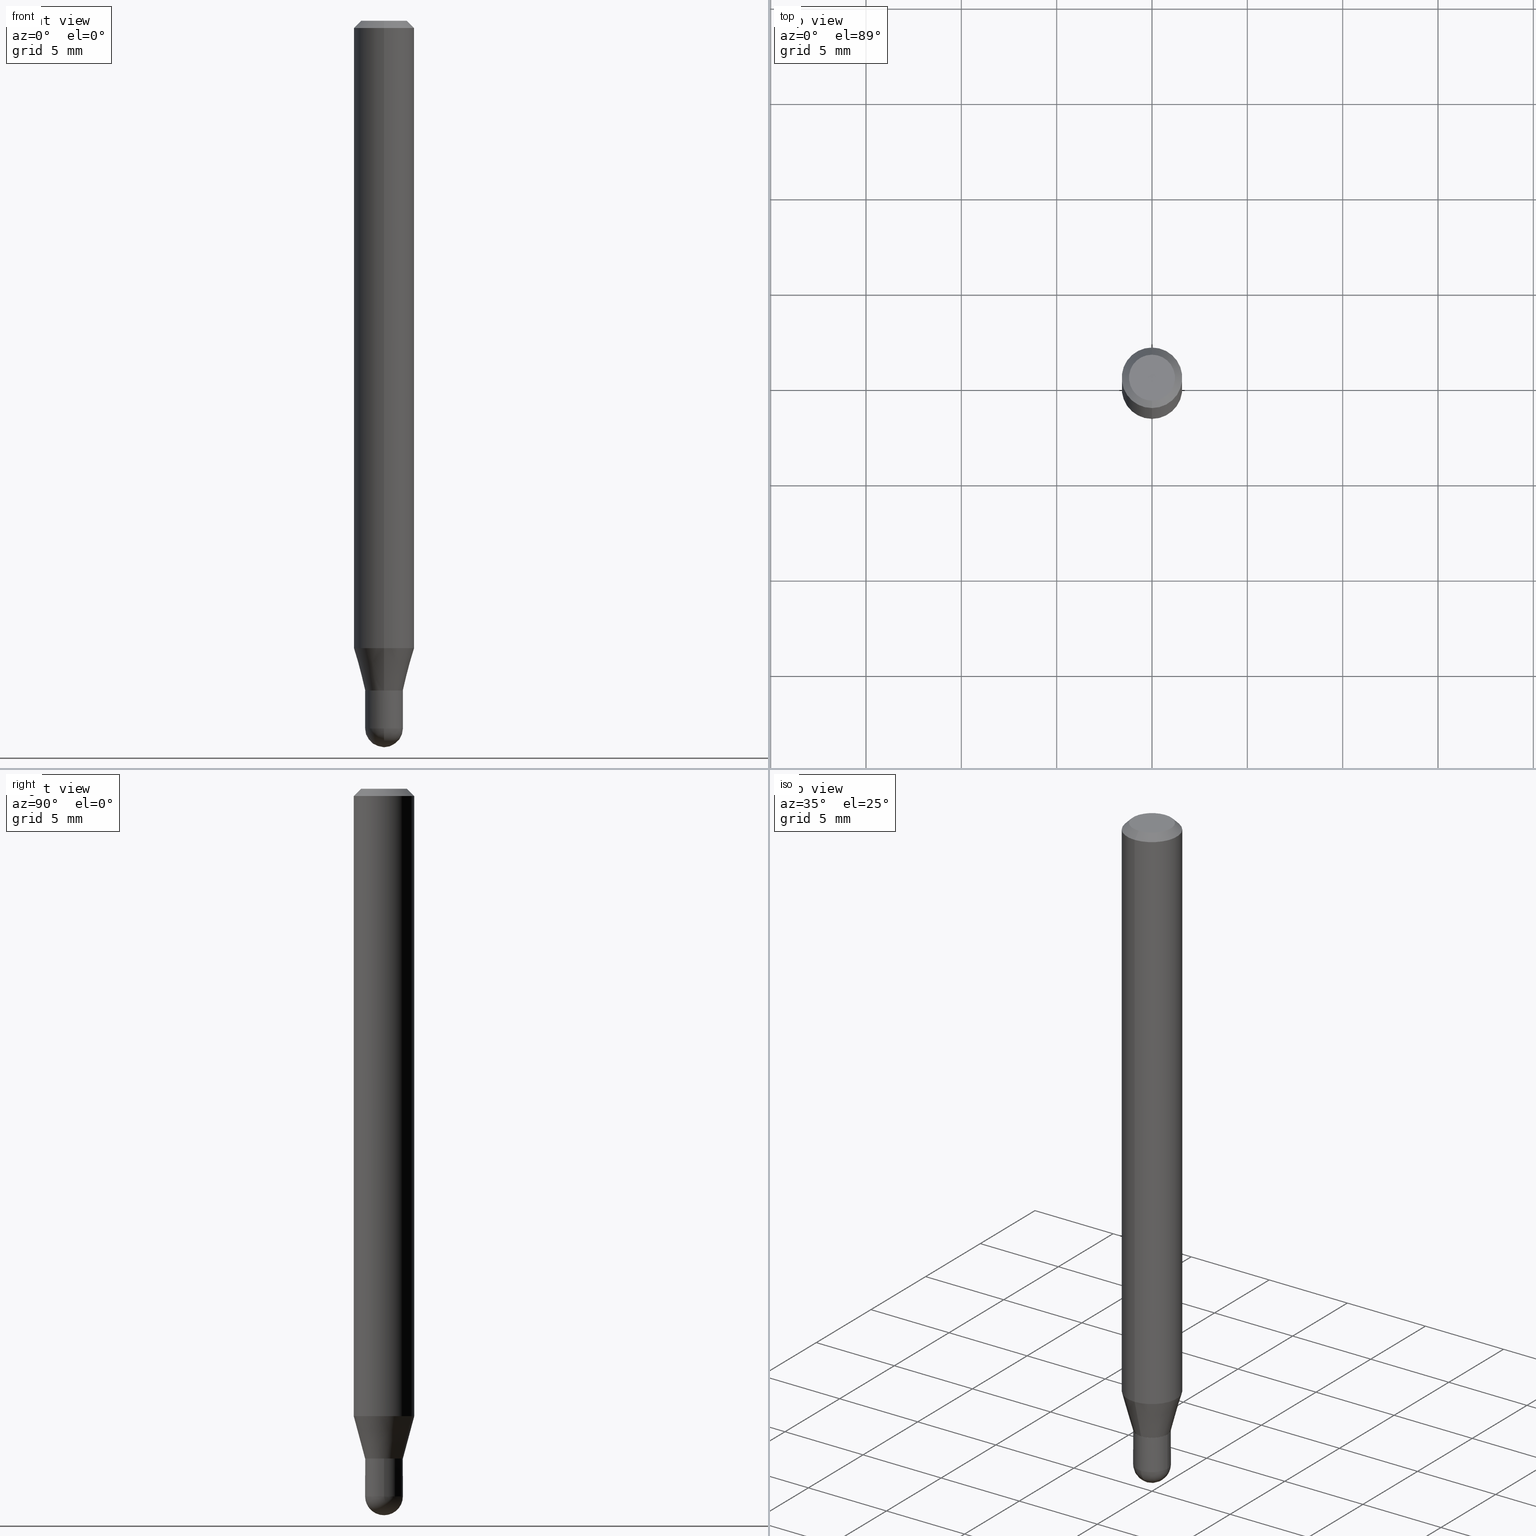
[diagram: canonical four-view strip — front | top / right | iso, engineering-drawing reading convention]
A machine part, canonical four-view strip (front | top / right | iso — engineering-drawing reading convention). The complete STEP part file that produces these views, byte-faithful:
ISO-10303-21;
HEADER;
FILE_DESCRIPTION (( 'STEP AP203' ),
    '1' );
FILE_NAME ('01422.STEP',
    '2024-03-07T20:39:55',
    ( '' ),
    ( '' ),
    'SwSTEP 2.0',
    'SolidWorks 2023',
    '' );
FILE_SCHEMA (( 'CONFIG_CONTROL_DESIGN' ));
ENDSEC;

DATA;
#1 = CARTESIAN_POINT ( 'NONE',  ( 3.569494777308684757E-29, -5.105830358566509883E-15, -1.461000000000000076 ) ) ;
#2 = CARTESIAN_POINT ( 'NONE',  ( 3.572829925836484317E-29, -5.101054236049835376E-15, -1.461000000000000076 ) ) ;
#3 = CARTESIAN_POINT ( 'NONE',  ( 2.167168248901613066E-46, -3.094083357917074429E-32, -8.861890908421441396E-18 ) ) ;
#4 = AXIS2_PLACEMENT_3D ( 'NONE', #128, #168, #328 ) ;
#5 = CIRCLE ( 'NONE', #448, 0.03899999999999992362 ) ;
#6 = ORIENTED_EDGE ( 'NONE', *, *, #31, .F. ) ;
#7 = CARTESIAN_POINT ( 'NONE',  ( 4.440892098500944664E-16, 0.06249999999999995143, -0.01500000000000022669 ) ) ;
#8 = CARTESIAN_POINT ( 'NONE',  ( 3.668237859104355439E-31, -5.237172387740815938E-17, -0.01500000000000000812 ) ) ;
#9 = ORIENTED_EDGE ( 'NONE', *, *, #55, .F. ) ;
#10 = CALENDAR_DATE ( 2024, 7, 3 ) ;
#11 = DIRECTION ( 'NONE',  ( -2.445468806185136597E-29, 3.491481338843145583E-15, 1.000000000000000000 ) ) ;
#12 = CLOSED_SHELL ( 'NONE', ( #111, #452, #163, #398, #19 ) ) ;
#13 = EDGE_LOOP ( 'NONE', ( #400, #408, #479, #132 ) ) ;
#14 = SECURITY_CLASSIFICATION_LEVEL ( 'unclassified' ) ;
#15 = AXIS2_PLACEMENT_3D ( 'NONE', #217, #24, #177 ) ;
#16 = DIRECTION ( 'NONE',  ( -6.982962677686265922E-15, -1.000000000000000000, 0.000000000000000000 ) ) ;
#17 = LINE ( 'NONE', #202, #437 ) ;
#18 = VERTEX_POINT ( 'NONE', #478 ) ;
#19 = ADVANCED_FACE ( 'NONE', ( #214 ), #370, .T. ) ;
#20 = CARTESIAN_POINT ( 'NONE',  ( 0.000000000000000000, 0.000000000000000000, 0.000000000000000000 ) ) ;
#21 = ORIENTED_EDGE ( 'NONE', *, *, #403, .F. ) ;
#22 = CALENDAR_DATE ( 2024, 7, 3 ) ;
#23 = PRODUCT ( '01422', '01422', '', ( #407 ) ) ;
#24 = DIRECTION ( 'NONE',  ( -2.445491906069568494E-29, 3.491448258493875090E-15, 1.000000000000000000 ) ) ;
#25 = PERSON_AND_ORGANIZATION ( #220, #511 ) ;
#26 = AXIS2_PLACEMENT_3D ( 'NONE', #376, #341, #497 ) ;
#27 = FACE_OUTER_BOUND ( 'NONE', #50, .T. ) ;
#28 = ORIENTED_EDGE ( 'NONE', *, *, #119, .F. ) ;
#29 = CARTESIAN_POINT ( 'NONE',  ( 2.723355444297981413E-16, 0.03899999999999516354, -1.383000000000000229 ) ) ;
#30 = ORIENTED_EDGE ( 'NONE', *, *, #313, .F. ) ;
#31 = EDGE_CURVE ( 'NONE', #212, #257, #114, .T. ) ;
#32 = CARTESIAN_POINT ( 'NONE',  ( 2.167168248901613066E-46, -3.094083357917074429E-32, -8.861890908421441396E-18 ) ) ;
#33 = ORIENTED_EDGE ( 'NONE', *, *, #321, .F. ) ;
#34 = AXIS2_PLACEMENT_3D ( 'NONE', #2, #309, #472 ) ;
#35 = CARTESIAN_POINT ( 'NONE',  ( 3.382115306094214150E-29, -4.828672941497029911E-15, -1.383000000000000229 ) ) ;
#36 = EDGE_CURVE ( 'NONE', #156, #203, #52, .T. ) ;
#37 = CARTESIAN_POINT ( 'NONE',  ( -2.723355444297309402E-16, -0.03900000000000489186, -1.382500000000000284 ) ) ;
#38 = CARTESIAN_POINT ( 'NONE',  ( 3.569494777308684757E-29, -5.105830358566509883E-15, -1.461000000000000076 ) ) ;
#39 = CIRCLE ( 'NONE', #44, 0.03899999999999999994 ) ;
#40 = SPHERICAL_SURFACE ( 'NONE', #432, 0.03900000000000016648 ) ;
#41 = SECURITY_CLASSIFICATION ( '', '', #14 ) ;
#42 = DIRECTION ( 'NONE',  ( -6.982962677686266711E-15, -1.000000000000000000, 3.491448258493875484E-15 ) ) ;
#43 = FACE_OUTER_BOUND ( 'NONE', #495, .T. ) ;
#44 = AXIS2_PLACEMENT_3D ( 'NONE', #159, #307, #315 ) ;
#45 = VERTEX_POINT ( 'NONE', #88 ) ;
#46 = EDGE_CURVE ( 'NONE', #430, #189, #17, .T. ) ;
#47 = CARTESIAN_POINT ( 'NONE',  ( 3.382115306094214150E-29, -4.828672941497029911E-15, -1.383000000000000229 ) ) ;
#48 = PERSON_AND_ORGANIZATION_ROLE ( 'design_supplier' ) ;
#49 = CC_DESIGN_PERSON_AND_ORGANIZATION_ASSIGNMENT ( #451, #496, ( #485 ) ) ;
#50 = EDGE_LOOP ( 'NONE', ( #366, #420 ) ) ;
#51 = COORDINATED_UNIVERSAL_TIME_OFFSET ( 5, 0, .BEHIND. ) ;
#52 = LINE ( 'NONE', #335, #160 ) ;
#53 = PERSON_AND_ORGANIZATION ( #220, #511 ) ;
#54 = AXIS2_PLACEMENT_3D ( 'NONE', #29, #419, #184 ) ;
#55 = EDGE_CURVE ( 'NONE', #197, #463, #137, .T. ) ;
#56 = EDGE_LOOP ( 'NONE', ( #28, #298, #336, #9 ) ) ;
#57 = ORIENTED_EDGE ( 'NONE', *, *, #291, .F. ) ;
#58 = PERSON_AND_ORGANIZATION ( #220, #511 ) ;
#59 = PRODUCT_DEFINITION_SHAPE ( 'NONE', 'NONE',  #485 ) ;
#60 = PRODUCT_RELATED_PRODUCT_CATEGORY ( 'detail', '', ( #23 ) ) ;
#61 = DIRECTION ( 'NONE',  ( -2.445491906069568494E-29, 3.491448258493875090E-15, 1.000000000000000000 ) ) ;
#62 = ORIENTED_EDGE ( 'NONE', *, *, #130, .T. ) ;
#63 = APPROVAL_ROLE ( '' ) ;
#64 = DIRECTION ( 'NONE',  ( 6.982962677686265922E-15, 1.000000000000000000, -3.483106191921935554E-15 ) ) ;
#65 = ORIENTED_EDGE ( 'NONE', *, *, #272, .T. ) ;
#66 = CONICAL_SURFACE ( 'NONE', #416, 0.06250000000000000000, 0.7853981633974483900 ) ;
#67 = AXIS2_PLACEMENT_3D ( 'NONE', #427, #84, #235 ) ;
#68 = CARTESIAN_POINT ( 'NONE',  ( 4.440892098500625669E-16, 0.06250000000000000000, -2.182155161558671684E-16 ) ) ;
#69 = SHAPE_DEFINITION_REPRESENTATION ( #59, #201 ) ;
#70 = CARTESIAN_POINT ( 'NONE',  ( -4.364351673553912750E-16, -0.06250000000000005551, -0.01499999999999979128 ) ) ;
#71 = CC_DESIGN_PERSON_AND_ORGANIZATION_ASSIGNMENT ( #455, #487, ( #23 ) ) ;
#72 = ORIENTED_EDGE ( 'NONE', *, *, #272, .F. ) ;
#73 = DIRECTION ( 'NONE',  ( -2.445491906069568494E-29, 3.491448258493875090E-15, 1.000000000000000000 ) ) ;
#74 = AXIS2_PLACEMENT_3D ( 'NONE', #457, #449, #260 ) ;
#75 = EDGE_CURVE ( 'NONE', #463, #189, #231, .T. ) ;
#76 = LOCAL_TIME ( 15, 39, 55.00000000000000000, #216 ) ;
#77 = DIRECTION ( 'NONE',  ( -2.445491906069568494E-29, 3.491448258493875090E-15, 1.000000000000000000 ) ) ;
#78 = DIRECTION ( 'NONE',  ( -6.982962677686265922E-15, -1.000000000000000000, 0.000000000000000000 ) ) ;
#79 = DIRECTION ( 'NONE',  ( 1.000000000000000000, -6.982962677686258033E-15, 0.000000000000000000 ) ) ;
#80 = ADVANCED_FACE ( 'NONE', ( #93 ), #323, .F. ) ;
#81 = ORIENTED_EDGE ( 'NONE', *, *, #31, .T. ) ;
#82 = CIRCLE ( 'NONE', #269, 0.03899999999999999994 ) ;
#83 = VECTOR ( 'NONE', #112, 39.37007874015748143 ) ;
#84 = DIRECTION ( 'NONE',  ( -2.445468806185136597E-29, 3.491481338843145583E-15, 1.000000000000000000 ) ) ;
#85 = DIRECTION ( 'NONE',  ( -2.445491906069568494E-29, 3.491448258493875090E-15, 1.000000000000000000 ) ) ;
#86 = EDGE_CURVE ( 'NONE', #109, #18, #82, .T. ) ;
#87 = CIRCLE ( 'NONE', #67, 0.03899999999999999994 ) ;
#88 = CARTESIAN_POINT ( 'NONE',  ( 0.03899999999999999994, -5.101054236049835376E-15, -1.383000000000000229 ) ) ;
#89 = ADVANCED_FACE ( 'NONE', ( #365 ), #358, .T. ) ;
#90 = UNCERTAINTY_MEASURE_WITH_UNIT (LENGTH_MEASURE( 1.000000000000000082E-05 ), #410, 'distance_accuracy_value', 'NONE');
#91 = ORIENTED_EDGE ( 'NONE', *, *, #36, .T. ) ;
#92 = CARTESIAN_POINT ( 'NONE',  ( 3.382115306094213590E-29, -4.828672941497029122E-15, -1.383000000000000007 ) ) ;
#93 = FACE_OUTER_BOUND ( 'NONE', #125, .T. ) ;
#94 = ORIENTED_EDGE ( 'NONE', *, *, #469, .T. ) ;
#95 = AXIS2_PLACEMENT_3D ( 'NONE', #8, #294, #165 ) ;
#96 = CC_DESIGN_PERSON_AND_ORGANIZATION_ASSIGNMENT ( #53, #367, ( #169 ) ) ;
#97 = CALENDAR_DATE ( 2024, 7, 3 ) ;
#98 = CARTESIAN_POINT ( 'NONE',  ( 3.668237859104355439E-31, -5.237172387740815938E-17, -0.01500000000000000812 ) ) ;
#99 = DATE_TIME_ROLE ( 'creation_date' ) ;
#100 = CARTESIAN_POINT ( 'NONE',  ( -2.723355444297300034E-16, -0.03900000000000475309, -1.383000000000000007 ) ) ;
#101 = ORIENTED_EDGE ( 'NONE', *, *, #361, .F. ) ;
#102 = CARTESIAN_POINT ( 'NONE',  ( 3.316907271900976096E-16, 0.04749999999999999362, -1.702747377326697798E-16 ) ) ;
#103 = CARTESIAN_POINT ( 'NONE',  ( 0.000000000000000000, 0.000000000000000000, 0.000000000000000000 ) ) ;
#104 = ORIENTED_EDGE ( 'NONE', *, *, #313, .T. ) ;
#105 = CIRCLE ( 'NONE', #26, 0.06250000000000000000 ) ;
#106 = LOCAL_TIME ( 15, 39, 55.00000000000000000, #51 ) ;
#107 = CC_DESIGN_PERSON_AND_ORGANIZATION_ASSIGNMENT ( #219, #48, ( #169 ) ) ;
#108 = DIRECTION ( 'NONE',  ( -2.445491906069568494E-29, 3.491448258493875090E-15, 1.000000000000000000 ) ) ;
#109 = VERTEX_POINT ( 'NONE', #185 ) ;
#110 = LINE ( 'NONE', #411, #209 ) ;
#111 = ADVANCED_FACE ( 'NONE', ( #151 ), #379, .T. ) ;
#112 = DIRECTION ( 'NONE',  ( -4.937700262164674260E-15, -0.7071067811865632269, 0.7071067811865319186 ) ) ;
#113 = ORIENTED_EDGE ( 'NONE', *, *, #150, .T. ) ;
#114 = CIRCLE ( 'NONE', #317, 0.03849999999999999256 ) ;
#115 = AXIS2_PLACEMENT_3D ( 'NONE', #444, #401, #280 ) ;
#116 = CARTESIAN_POINT ( 'NONE',  ( 0.000000000000000000, 0.000000000000000000, 0.000000000000000000 ) ) ;
#117 = DIRECTION ( 'NONE',  ( -6.982962677686265922E-15, -1.000000000000000000, 0.000000000000000000 ) ) ;
#118 = ORIENTED_EDGE ( 'NONE', *, *, #261, .T. ) ;
#119 = EDGE_CURVE ( 'NONE', #371, #197, #492, .T. ) ;
#120 = CYLINDRICAL_SURFACE ( 'NONE', #186, 0.03899999999999992362 ) ;
#121 = AXIS2_PLACEMENT_3D ( 'NONE', #460, #108, #395 ) ;
#122 = AXIS2_PLACEMENT_3D ( 'NONE', #3, #350, #42 ) ;
#123 = CARTESIAN_POINT ( 'NONE',  ( 3.663200486486005276E-29, -5.244386192039730726E-15, -1.500000000000000222 ) ) ;
#124 = CARTESIAN_POINT ( 'NONE',  ( -4.364351673553602629E-16, -0.06250000000000455191, -1.295296806022133707 ) ) ;
#125 = EDGE_LOOP ( 'NONE', ( #6, #301 ) ) ;
#126 = DIRECTION ( 'NONE',  ( -2.445468806185136877E-29, 3.491481338843145188E-15, 1.000000000000000000 ) ) ;
#127 = VECTOR ( 'NONE', #312, 39.37007874015748143 ) ;
#128 = CARTESIAN_POINT ( 'NONE',  ( 3.382115306094214150E-29, -4.828672941497029911E-15, -1.383000000000000229 ) ) ;
#129 = DATE_AND_TIME ( #10, #360 ) ;
#130 = EDGE_CURVE ( 'NONE', #257, #212, #343, .T. ) ;
#131 = DIRECTION ( 'NONE',  ( 1.000000000000000000, -6.982962677686265922E-15, 4.876176775795935793E-29 ) ) ;
#132 = ORIENTED_EDGE ( 'NONE', *, *, #75, .F. ) ;
#133 = APPROVAL_STATUS ( 'not_yet_approved' ) ;
#134 = DIRECTION ( 'NONE',  ( -6.982962677686266711E-15, -1.000000000000000000, 0.000000000000000000 ) ) ;
#135 = DIMENSIONAL_EXPONENTS ( 1.000000000000000000, 0.000000000000000000, 0.000000000000000000, 0.000000000000000000, 0.000000000000000000, 0.000000000000000000, 0.000000000000000000 ) ;
#136 = AXIS2_PLACEMENT_3D ( 'NONE', #332, #486, #134 ) ;
#137 = LINE ( 'NONE', #172, #447 ) ;
#138 = AXIS2_PLACEMENT_3D ( 'NONE', #281, #248, #16 ) ;
#139 =( NAMED_UNIT ( * ) PLANE_ANGLE_UNIT ( ) SI_UNIT ( $, .RADIAN. ) );
#140 = AXIS2_PLACEMENT_3D ( 'NONE', #405, #208, #252 ) ;
#141 = PLANE ( 'NONE',  #161 ) ;
#142 = FACE_OUTER_BOUND ( 'NONE', #289, .T. ) ;
#143 = COORDINATED_UNIVERSAL_TIME_OFFSET ( 5, 0, .BEHIND. ) ;
#144 = PLANE ( 'NONE',  #54 ) ;
#145 = ORIENTED_EDGE ( 'NONE', *, *, #75, .T. ) ;
#146 = ADVANCED_FACE ( 'NONE', ( #265 ), #66, .T. ) ;
#147 = DIRECTION ( 'NONE',  ( -6.982962677686265922E-15, -1.000000000000000000, 0.000000000000000000 ) ) ;
#148 = VERTEX_POINT ( 'NONE', #344 ) ;
#149 = CIRCLE ( 'NONE', #34, 0.03899999999999999994 ) ;
#150 = EDGE_CURVE ( 'NONE', #148, #463, #504, .T. ) ;
#151 = FACE_OUTER_BOUND ( 'NONE', #415, .T. ) ;
#152 = APPROVAL ( #174, 'UNSPECIFIED' ) ;
#153 = CARTESIAN_POINT ( 'NONE',  ( 2.771116669464723029E-16, 0.03899999999999508721, -1.383000000000000007 ) ) ;
#154 = AXIS2_PLACEMENT_3D ( 'NONE', #92, #406, #468 ) ;
#155 = LINE ( 'NONE', #389, #83 ) ;
#156 = VERTEX_POINT ( 'NONE', #462 ) ;
#157 = EDGE_CURVE ( 'NONE', #166, #423, #110, .T. ) ;
#158 = CYLINDRICAL_SURFACE ( 'NONE', #359, 0.06250000000000000000 ) ;
#159 = CARTESIAN_POINT ( 'NONE',  ( 3.382083358954044842E-29, -4.828718691620071353E-15, -1.383000000000000229 ) ) ;
#160 = VECTOR ( 'NONE', #210, 39.37007874015748143 ) ;
#161 = AXIS2_PLACEMENT_3D ( 'NONE', #102, #245, #353 ) ;
#162 = APPROVAL_PERSON_ORGANIZATION ( #247, #196, #412 ) ;
#163 = ADVANCED_FACE ( 'NONE', ( #27 ), #144, .F. ) ;
#164 = MANIFOLD_SOLID_BREP ( 'Body-Move/Copy2[2]', #302 ) ;
#165 = DIRECTION ( 'NONE',  ( -6.982962677686265922E-15, -1.000000000000000000, 3.483106191921935554E-15 ) ) ;
#166 = VERTEX_POINT ( 'NONE', #297 ) ;
#167 = AXIS2_PLACEMENT_3D ( 'NONE', #300, #417, #147 ) ;
#168 = DIRECTION ( 'NONE',  ( -2.445491906069567934E-29, 3.491448258493875484E-15, 1.000000000000000000 ) ) ;
#169 = PRODUCT_DEFINITION_FORMATION_WITH_SPECIFIED_SOURCE ( 'ANY', '', #23, .NOT_KNOWN. ) ;
#170 = ORIENTED_EDGE ( 'NONE', *, *, #361, .T. ) ;
#171 = DATE_AND_TIME ( #22, #76 ) ;
#172 = CARTESIAN_POINT ( 'NONE',  ( 4.364351673553919652E-16, 0.06249999999999995143, -0.01500000000000022669 ) ) ;
#173 = ORIENTED_EDGE ( 'NONE', *, *, #331, .T. ) ;
#174 = APPROVAL_STATUS ( 'not_yet_approved' ) ;
#175 = DIRECTION ( 'NONE',  ( -6.982962677686266711E-15, -1.000000000000000000, 0.000000000000000000 ) ) ;
#176 = CALENDAR_DATE ( 2024, 7, 3 ) ;
#177 = DIRECTION ( 'NONE',  ( -6.982962677686265922E-15, -1.000000000000000000, 0.000000000000000000 ) ) ;
#178 = ADVANCED_FACE ( 'NONE', ( #263 ), #345, .T. ) ;
#179 = AXIS2_PLACEMENT_3D ( 'NONE', #38, #473, #357 ) ;
#180 = EDGE_LOOP ( 'NONE', ( #81, #476, #33, #461 ) ) ;
#181 = DATE_AND_TIME ( #491, #239 ) ;
#182 = CARTESIAN_POINT ( 'NONE',  ( 3.167637855084892691E-29, -4.522461777618659475E-15, -1.295296806022133929 ) ) ;
#183 = CC_DESIGN_DATE_AND_TIME_ASSIGNMENT ( #171, #484, ( #41 ) ) ;
#184 = DIRECTION ( 'NONE',  ( -1.000000000000000000, 6.982962677686265922E-15, -4.876176775795935793E-29 ) ) ;
#185 = CARTESIAN_POINT ( 'NONE',  ( -2.723355444297292639E-16, -0.03900000000000519024, -1.461000000000000076 ) ) ;
#186 = AXIS2_PLACEMENT_3D ( 'NONE', #431, #369, #319 ) ;
#187 = APPROVAL ( #133, 'UNSPECIFIED' ) ;
#188 = DIRECTION ( 'NONE',  ( -6.982962677686265922E-15, -1.000000000000000000, 4.370956789862821150E-15 ) ) ;
#189 = VERTEX_POINT ( 'NONE', #70 ) ;
#190 = CARTESIAN_POINT ( 'NONE',  ( -2.723355444297638258E-16, -0.03899999999999992362, 1.361664820812608421E-16 ) ) ;
#191 = APPLICATION_CONTEXT ( 'configuration controlled 3d designs of mechanical parts and assemblies' ) ;
#192 = CARTESIAN_POINT ( 'NONE',  ( 3.382115306094213590E-29, -4.828672941497029122E-15, -1.383000000000000007 ) ) ;
#193 = ADVANCED_FACE ( 'NONE', ( #342 ), #466, .T. ) ;
#194 = VECTOR ( 'NONE', #500, 39.37007874015748854 ) ;
#195 = LINE ( 'NONE', #354, #338 ) ;
#196 = APPROVAL ( #446, 'UNSPECIFIED' ) ;
#197 = VERTEX_POINT ( 'NONE', #339 ) ;
#198 = DIRECTION ( 'NONE',  ( 1.839019923739651986E-15, 0.2588190451025322303, 0.9659258262890650926 ) ) ;
#199 = EDGE_CURVE ( 'NONE', #286, #430, #422, .T. ) ;
#200 = VECTOR ( 'NONE', #126, 39.37007874015748143 ) ;
#201 = ADVANCED_BREP_SHAPE_REPRESENTATION ( '01422', ( #333, #164, #140 ), #393 ) ;
#202 = CARTESIAN_POINT ( 'NONE',  ( -4.364351673553916201E-16, -0.06250000000000000000, 2.182155161558671684E-16 ) ) ;
#203 = VERTEX_POINT ( 'NONE', #494 ) ;
#204 =( NAMED_UNIT ( * ) SI_UNIT ( $, .STERADIAN. ) SOLID_ANGLE_UNIT ( ) );
#205 = DIRECTION ( 'NONE',  ( 1.000000000000000000, -6.982962677686258033E-15, 0.000000000000000000 ) ) ;
#206 = ADVANCED_FACE ( 'NONE', ( #142 ), #228, .F. ) ;
#207 = ORIENTED_EDGE ( 'NONE', *, *, #261, .F. ) ;
#208 = DIRECTION ( 'NONE',  ( 0.000000000000000000, 0.000000000000000000, 1.000000000000000000 ) ) ;
#209 = VECTOR ( 'NONE', #381, 39.37007874015748143 ) ;
#210 = DIRECTION ( 'NONE',  ( -2.445491906069568494E-29, 3.491448258493875484E-15, 1.000000000000000000 ) ) ;
#211 = LOCAL_TIME ( 15, 39, 55.00000000000000000, #143 ) ;
#212 = VERTEX_POINT ( 'NONE', #230 ) ;
#213 = PERSON_AND_ORGANIZATION_ROLE ( 'classification_officer' ) ;
#214 = FACE_OUTER_BOUND ( 'NONE', #295, .T. ) ;
#215 = ORIENTED_EDGE ( 'NONE', *, *, #199, .F. ) ;
#216 = COORDINATED_UNIVERSAL_TIME_OFFSET ( 5, 0, .BEHIND. ) ;
#217 = CARTESIAN_POINT ( 'NONE',  ( 3.382115306094213590E-29, -4.828672941497029122E-15, -1.383000000000000007 ) ) ;
#218 = EDGE_LOOP ( 'NONE', ( #490, #65, #340, #215 ) ) ;
#219 = PERSON_AND_ORGANIZATION ( #220, #511 ) ;
#220 = PERSON ( 'UNSPECIFIED', 'UNSPECIFIED', 'UNSPECIFIED', ('UNSPECIFIED'), ('UNSPECIFIED'), ('UNSPECIFIED') ) ;
#221 = CC_DESIGN_DATE_AND_TIME_ASSIGNMENT ( #287, #99, ( #485 ) ) ;
#222 = CARTESIAN_POINT ( 'NONE',  ( 0.000000000000000000, 0.000000000000000000, 0.000000000000000000 ) ) ;
#223 = VECTOR ( 'NONE', #198, 39.37007874015748143 ) ;
#224 = VERTEX_POINT ( 'NONE', #303 ) ;
#225 = CC_DESIGN_APPROVAL ( #187, ( #41 ) ) ;
#226 = DIRECTION ( 'NONE',  ( -6.982962677686265922E-15, -1.000000000000000000, 3.491448258493874695E-15 ) ) ;
#227 = EDGE_CURVE ( 'NONE', #430, #148, #368, .T. ) ;
#228 = CYLINDRICAL_SURFACE ( 'NONE', #425, 0.03899999999999992362 ) ;
#229 = ORIENTED_EDGE ( 'NONE', *, *, #55, .T. ) ;
#230 = CARTESIAN_POINT ( 'NONE',  ( -2.688440630908873907E-16, -0.03850000000000482897, -1.383000000000000229 ) ) ;
#231 = CIRCLE ( 'NONE', #95, 0.06250000000000000000 ) ;
#232 = FACE_OUTER_BOUND ( 'NONE', #305, .T. ) ;
#233 = LINE ( 'NONE', #190, #283 ) ;
#234 = EDGE_CURVE ( 'NONE', #148, #430, #105, .T. ) ;
#235 = DIRECTION ( 'NONE',  ( 1.000000000000000000, -6.982962677686258033E-15, 0.000000000000000000 ) ) ;
#236 = CARTESIAN_POINT ( 'NONE',  ( -3.773273898774340269E-16, -0.04749999999999999362, 1.569819013700376278E-16 ) ) ;
#237 = EDGE_CURVE ( 'NONE', #156, #286, #392, .T. ) ;
#238 = ORIENTED_EDGE ( 'NONE', *, *, #469, .F. ) ;
#239 = LOCAL_TIME ( 15, 39, 55.00000000000000000, #337 ) ;
#240 = CARTESIAN_POINT ( 'NONE',  ( 3.572829925836484317E-29, -5.101054236049835376E-15, -1.461000000000000076 ) ) ;
#241 = FACE_OUTER_BOUND ( 'NONE', #458, .T. ) ;
#242 = DIRECTION ( 'NONE',  ( 2.445491906069568494E-29, -3.491448258493875090E-15, -1.000000000000000000 ) ) ;
#243 = ORIENTED_EDGE ( 'NONE', *, *, #321, .T. ) ;
#244 = ORIENTED_EDGE ( 'NONE', *, *, #86, .T. ) ;
#245 = DIRECTION ( 'NONE',  ( 2.445491906069567934E-29, -3.491448258493875484E-15, -1.000000000000000000 ) ) ;
#246 = EDGE_LOOP ( 'NONE', ( #465, #364, #454, #243 ) ) ;
#247 = PERSON_AND_ORGANIZATION ( #220, #511 ) ;
#248 = DIRECTION ( 'NONE',  ( 1.000000000000000000, -6.982962677686265922E-15, 4.883557194083112340E-29 ) ) ;
#249 = EDGE_CURVE ( 'NONE', #189, #463, #475, .T. ) ;
#250 = DIRECTION ( 'NONE',  ( -2.445468806185136597E-29, 3.491481338843145583E-15, 1.000000000000000000 ) ) ;
#251 = VERTEX_POINT ( 'NONE', #123 ) ;
#252 = DIRECTION ( 'NONE',  ( 1.000000000000000000, 0.000000000000000000, 0.000000000000000000 ) ) ;
#253 = CARTESIAN_POINT ( 'NONE',  ( -0.03899999999999999994, -4.687774796888514046E-15, -1.383000000000000229 ) ) ;
#254 = ORIENTED_EDGE ( 'NONE', *, *, #325, .T. ) ;
#255 = SPHERICAL_SURFACE ( 'NONE', #138, 0.03900000000000016648 ) ;
#256 = CONICAL_SURFACE ( 'NONE', #318, 0.06250000000000000000, 0.7853981633974483900 ) ;
#257 = VERTEX_POINT ( 'NONE', #467 ) ;
#258 = APPLICATION_PROTOCOL_DEFINITION ( 'international standard', 'config_control_design', 1994, #191 ) ;
#259 = EDGE_CURVE ( 'NONE', #423, #45, #39, .T. ) ;
#260 = DIRECTION ( 'NONE',  ( -6.982962677686266711E-15, -1.000000000000000000, 0.000000000000000000 ) ) ;
#261 = EDGE_CURVE ( 'NONE', #197, #371, #304, .T. ) ;
#262 = ADVANCED_FACE ( 'NONE', ( #433 ), #158, .T. ) ;
#263 = FACE_OUTER_BOUND ( 'NONE', #450, .T. ) ;
#264 = CIRCLE ( 'NONE', #384, 0.03900000000000016648 ) ;
#265 = FACE_OUTER_BOUND ( 'NONE', #270, .T. ) ;
#266 = ORIENTED_EDGE ( 'NONE', *, *, #119, .T. ) ;
#267 = DIRECTION ( 'NONE',  ( 2.445491906069568494E-29, -3.491448258493875090E-15, -1.000000000000000000 ) ) ;
#268 = CYLINDRICAL_SURFACE ( 'NONE', #459, 0.06250000000000000000 ) ;
#269 = AXIS2_PLACEMENT_3D ( 'NONE', #285, #250, #205 ) ;
#270 = EDGE_LOOP ( 'NONE', ( #57, #207, #229, #145 ) ) ;
#271 = AXIS2_PLACEMENT_3D ( 'NONE', #477, #11, #327 ) ;
#272 = EDGE_CURVE ( 'NONE', #156, #148, #349, .T. ) ;
#273 = DIRECTION ( 'NONE',  ( -2.445491906069568494E-29, 3.491448258493875090E-15, 1.000000000000000000 ) ) ;
#274 = DIRECTION ( 'NONE',  ( 1.000000000000000000, -7.105427357601001070E-15, 4.926315508542082329E-29 ) ) ;
#275 = DIRECTION ( 'NONE',  ( 5.024295867788190974E-15, 0.7071067811865681119, 0.7071067811865270336 ) ) ;
#276 = DIRECTION ( 'NONE',  ( -2.445491906069568494E-29, 3.491448258493875484E-15, 1.000000000000000000 ) ) ;
#277 = AXIS2_PLACEMENT_3D ( 'NONE', #240, #279, #79 ) ;
#278 = CC_DESIGN_SECURITY_CLASSIFICATION ( #41, ( #169 ) ) ;
#279 = DIRECTION ( 'NONE',  ( -2.445468806185136597E-29, 3.491481338843145583E-15, 1.000000000000000000 ) ) ;
#280 = DIRECTION ( 'NONE',  ( -6.982962677686265922E-15, -1.000000000000000000, 0.000000000000000000 ) ) ;
#281 = CARTESIAN_POINT ( 'NONE',  ( 3.569494777308684757E-29, -5.105830358566509883E-15, -1.461000000000000076 ) ) ;
#282 = ORIENTED_EDGE ( 'NONE', *, *, #331, .F. ) ;
#283 = VECTOR ( 'NONE', #276, 39.37007874015748143 ) ;
#284 = CC_DESIGN_APPROVAL ( #152, ( #485 ) ) ;
#285 = CARTESIAN_POINT ( 'NONE',  ( 3.572829925836484317E-29, -5.101054236049835376E-15, -1.461000000000000076 ) ) ;
#286 = VERTEX_POINT ( 'NONE', #464 ) ;
#287 = DATE_AND_TIME ( #176, #106 ) ;
#288 = LINE ( 'NONE', #322, #200 ) ;
#289 = EDGE_LOOP ( 'NONE', ( #441, #91, #352, #21 ) ) ;
#290 = APPROVAL_ROLE ( '' ) ;
#291 = EDGE_CURVE ( 'NONE', #371, #189, #356, .T. ) ;
#292 = ORIENTED_EDGE ( 'NONE', *, *, #46, .F. ) ;
#293 = CIRCLE ( 'NONE', #179, 0.03900000000000016648 ) ;
#294 = DIRECTION ( 'NONE',  ( -2.445491906069568494E-29, 3.491448258493875090E-15, 1.000000000000000000 ) ) ;
#295 = EDGE_LOOP ( 'NONE', ( #308, #173, #244, #94, #382 ) ) ;
#296 = PERSON_AND_ORGANIZATION ( #220, #511 ) ;
#297 = CARTESIAN_POINT ( 'NONE',  ( -0.03899999999999999994, -4.687774796888514046E-15, -1.461000000000000076 ) ) ;
#298 = ORIENTED_EDGE ( 'NONE', *, *, #291, .T. ) ;
#299 = LENGTH_MEASURE_WITH_UNIT ( LENGTH_MEASURE( 0.02539999999999999897 ), #362 );
#300 = CARTESIAN_POINT ( 'NONE',  ( 3.382115306094213590E-29, -4.828672941497029122E-15, -1.383000000000000007 ) ) ;
#301 = ORIENTED_EDGE ( 'NONE', *, *, #130, .F. ) ;
#302 = CLOSED_SHELL ( 'NONE', ( #206, #89, #456, #391, #193, #489, #262, #146, #507, #80, #178, #413 ) ) ;
#303 = CARTESIAN_POINT ( 'NONE',  ( 2.771116669464753104E-16, 0.03899999999999497619, -1.461000000000000076 ) ) ;
#304 = CIRCLE ( 'NONE', #122, 0.04749999999999999362 ) ;
#305 = EDGE_LOOP ( 'NONE', ( #118, #266 ) ) ;
#306 = DIRECTION ( 'NONE',  ( -2.445491906069568494E-29, 3.491448258493875484E-15, 1.000000000000000000 ) ) ;
#307 = DIRECTION ( 'NONE',  ( -2.445468806185136597E-29, 3.491481338843145583E-15, 1.000000000000000000 ) ) ;
#308 = ORIENTED_EDGE ( 'NONE', *, *, #157, .F. ) ;
#309 = DIRECTION ( 'NONE',  ( -2.445468806185136597E-29, 3.491481338843145583E-15, 1.000000000000000000 ) ) ;
#310 = AXIS2_PLACEMENT_3D ( 'NONE', #182, #385, #188 ) ;
#311 = ORIENTED_EDGE ( 'NONE', *, *, #380, .F. ) ;
#312 = DIRECTION ( 'NONE',  ( -4.851104656540964275E-15, -0.7071067811865500152, -0.7071067811865450192 ) ) ;
#313 = EDGE_CURVE ( 'NONE', #18, #224, #149, .T. ) ;
#314 = DIRECTION ( 'NONE',  ( 1.000000000000000000, -6.982962677686265922E-15, 4.883557194083112340E-29 ) ) ;
#315 = DIRECTION ( 'NONE',  ( 1.000000000000000000, -6.982962677686258033E-15, 0.000000000000000000 ) ) ;
#316 = APPLICATION_CONTEXT ( 'configuration controlled 3d designs of mechanical parts and assemblies' ) ;
#317 = AXIS2_PLACEMENT_3D ( 'NONE', #47, #436, #175 ) ;
#318 = AXIS2_PLACEMENT_3D ( 'NONE', #399, #242, #435 ) ;
#319 = DIRECTION ( 'NONE',  ( -6.982962677686265922E-15, -1.000000000000000000, 3.491448258493874695E-15 ) ) ;
#320 = DIRECTION ( 'NONE',  ( -2.445468806185136597E-29, 3.491481338843145583E-15, 1.000000000000000000 ) ) ;
#321 = EDGE_CURVE ( 'NONE', #346, #203, #480, .T. ) ;
#322 = CARTESIAN_POINT ( 'NONE',  ( 0.03899999999999999994, -2.723355444297643682E-16, 1.901708942560414931E-30 ) ) ;
#323 = PLANE ( 'NONE',  #4 ) ;
#324 = APPLICATION_PROTOCOL_DEFINITION ( 'international standard', 'config_control_design', 1994, #316 ) ;
#325 = EDGE_CURVE ( 'NONE', #212, #346, #155, .T. ) ;
#326 = APPROVAL_PERSON_ORGANIZATION ( #296, #152, #63 ) ;
#327 = DIRECTION ( 'NONE',  ( 1.000000000000000000, -6.982962677686258033E-15, 0.000000000000000000 ) ) ;
#328 = DIRECTION ( 'NONE',  ( -6.982962677686265922E-15, -1.000000000000000000, 3.491448258493875484E-15 ) ) ;
#329 = ORIENTED_EDGE ( 'NONE', *, *, #474, .F. ) ;
#330 = COORDINATED_UNIVERSAL_TIME_OFFSET ( 5, 0, .BEHIND. ) ;
#331 = EDGE_CURVE ( 'NONE', #166, #109, #87, .T. ) ;
#332 = CARTESIAN_POINT ( 'NONE',  ( 3.382115306094214150E-29, -4.828672941497029911E-15, -1.383000000000000229 ) ) ;
#333 = MANIFOLD_SOLID_BREP ( 'Body-Move/Copy2[1]', #12 ) ;
#334 = ORIENTED_EDGE ( 'NONE', *, *, #502, .T. ) ;
#335 = CARTESIAN_POINT ( 'NONE',  ( 2.771116669464384311E-16, 0.03899999999999992362, -1.361664820812608421E-16 ) ) ;
#336 = ORIENTED_EDGE ( 'NONE', *, *, #249, .T. ) ;
#337 = COORDINATED_UNIVERSAL_TIME_OFFSET ( 5, 0, .BEHIND. ) ;
#338 = VECTOR ( 'NONE', #275, 39.37007874015748143 ) ;
#339 = CARTESIAN_POINT ( 'NONE',  ( 3.840629472727447874E-16, 0.04749999999999999362, -1.747056831868805136E-16 ) ) ;
#340 = ORIENTED_EDGE ( 'NONE', *, *, #227, .F. ) ;
#341 = DIRECTION ( 'NONE',  ( -2.445491906069568494E-29, 3.491448258493875090E-15, 1.000000000000000000 ) ) ;
#342 = FACE_OUTER_BOUND ( 'NONE', #218, .T. ) ;
#343 = CIRCLE ( 'NONE', #74, 0.03849999999999999256 ) ;
#344 = CARTESIAN_POINT ( 'NONE',  ( 4.440892098500939734E-16, 0.06249999999999544115, -1.295296806022134373 ) ) ;
#345 = CONICAL_SURFACE ( 'NONE', #438, 0.03849999999999999256, 0.7853981633974739252 ) ;
#346 = VERTEX_POINT ( 'NONE', #37 ) ;
#347 = EDGE_CURVE ( 'NONE', #251, #109, #293, .T. ) ;
#348 = DIRECTION ( 'NONE',  ( -6.982962677686266711E-15, -1.000000000000000000, 0.000000000000000000 ) ) ;
#349 = LINE ( 'NONE', #153, #223 ) ;
#350 = DIRECTION ( 'NONE',  ( -2.445491906069568494E-29, 3.491448258493875090E-15, 1.000000000000000000 ) ) ;
#351 = CONICAL_SURFACE ( 'NONE', #154, 0.03899999999999992362, 0.2617993877991577900 ) ;
#352 = ORIENTED_EDGE ( 'NONE', *, *, #421, .T. ) ;
#353 = DIRECTION ( 'NONE',  ( 6.982962677686265922E-15, 1.000000000000000000, -3.491448258493875484E-15 ) ) ;
#354 = CARTESIAN_POINT ( 'NONE',  ( 2.735589532676723411E-16, 0.03849999999999516309, -1.383000000000000229 ) ) ;
#355 = ORIENTED_EDGE ( 'NONE', *, *, #237, .T. ) ;
#356 = LINE ( 'NONE', #426, #127 ) ;
#357 = DIRECTION ( 'NONE',  ( -6.982962677686266711E-15, -1.000000000000000000, 0.000000000000000000 ) ) ;
#358 = CONICAL_SURFACE ( 'NONE', #136, 0.03849999999999999256, 0.7853981633974739252 ) ;
#359 = AXIS2_PLACEMENT_3D ( 'NONE', #116, #273, #510 ) ;
#360 = LOCAL_TIME ( 15, 39, 55.00000000000000000, #330 ) ;
#361 = EDGE_CURVE ( 'NONE', #224, #166, #503, .T. ) ;
#362 =( LENGTH_UNIT ( ) NAMED_UNIT ( * ) SI_UNIT ( $, .METRE. ) );
#363 = DIRECTION ( 'NONE',  ( 4.937700262164548042E-15, 0.7071067811865451302, -0.7071067811865499042 ) ) ;
#364 = ORIENTED_EDGE ( 'NONE', *, *, #377, .F. ) ;
#365 = FACE_OUTER_BOUND ( 'NONE', #180, .T. ) ;
#366 = ORIENTED_EDGE ( 'NONE', *, *, #474, .T. ) ;
#367 = PERSON_AND_ORGANIZATION_ROLE ( 'creator' ) ;
#368 = CIRCLE ( 'NONE', #310, 0.06250000000000000000 ) ;
#369 = DIRECTION ( 'NONE',  ( -2.445491906069568494E-29, 3.491448258493875090E-15, 1.000000000000000000 ) ) ;
#370 = CYLINDRICAL_SURFACE ( 'NONE', #383, 0.03899999999999999994 ) ;
#371 = VERTEX_POINT ( 'NONE', #236 ) ;
#372 = CARTESIAN_POINT ( 'NONE',  ( 3.569494777308684757E-29, -5.105830358566509883E-15, -1.461000000000000076 ) ) ;
#373 = DIRECTION ( 'NONE',  ( -6.982962677686266711E-15, -1.000000000000000000, 3.491448258493875484E-15 ) ) ;
#374 = DATE_AND_TIME ( #97, #211 ) ;
#375 = CIRCLE ( 'NONE', #115, 0.03899999999999992362 ) ;
#376 = CARTESIAN_POINT ( 'NONE',  ( 3.167637855084892691E-29, -4.522461777618659475E-15, -1.295296806022133929 ) ) ;
#377 = EDGE_CURVE ( 'NONE', #286, #156, #5, .T. ) ;
#378 = ORIENTED_EDGE ( 'NONE', *, *, #199, .T. ) ;
#379 = CYLINDRICAL_SURFACE ( 'NONE', #424, 0.03899999999999999994 ) ;
#380 = EDGE_CURVE ( 'NONE', #257, #203, #195, .T. ) ;
#381 = DIRECTION ( 'NONE',  ( -2.445468806185136877E-29, 3.491481338843145188E-15, 1.000000000000000000 ) ) ;
#382 = ORIENTED_EDGE ( 'NONE', *, *, #259, .F. ) ;
#383 = AXIS2_PLACEMENT_3D ( 'NONE', #20, #320, #131 ) ;
#384 = AXIS2_PLACEMENT_3D ( 'NONE', #372, #274, #428 ) ;
#385 = DIRECTION ( 'NONE',  ( -2.445491906069568494E-29, 3.491448258493875090E-15, 1.000000000000000000 ) ) ;
#386 = APPROVAL_PERSON_ORGANIZATION ( #25, #187, #290 ) ;
#387 = ORIENTED_EDGE ( 'NONE', *, *, #421, .F. ) ;
#388 = DIRECTION ( 'NONE',  ( -6.982962677686265922E-15, -1.000000000000000000, 0.000000000000000000 ) ) ;
#389 = CARTESIAN_POINT ( 'NONE',  ( -2.688440630908873907E-16, -0.03850000000000482897, -1.383000000000000229 ) ) ;
#390 = DIRECTION ( 'NONE',  ( -2.445491906069568494E-29, 3.491448258493875090E-15, 1.000000000000000000 ) ) ;
#391 = ADVANCED_FACE ( 'NONE', ( #241 ), #268, .T. ) ;
#392 = CIRCLE ( 'NONE', #167, 0.03899999999999992362 ) ;
#393 =( GEOMETRIC_REPRESENTATION_CONTEXT ( 3 ) GLOBAL_UNCERTAINTY_ASSIGNED_CONTEXT ( ( #90 ) ) GLOBAL_UNIT_ASSIGNED_CONTEXT ( ( #410, #139, #204 ) ) REPRESENTATION_CONTEXT ( 'NONE', 'WORKASPACE' ) );
#394 = ORIENTED_EDGE ( 'NONE', *, *, #227, .T. ) ;
#395 = DIRECTION ( 'NONE',  ( -6.982962677686265922E-15, -1.000000000000000000, 3.483106191921935554E-15 ) ) ;
#396 = DESIGN_CONTEXT ( 'detailed design', #316, 'design' ) ;
#397 = DIRECTION ( 'NONE',  ( -6.982962677686265922E-15, -1.000000000000000000, 3.491448258493874695E-15 ) ) ;
#398 = ADVANCED_FACE ( 'NONE', ( #43 ), #40, .T. ) ;
#399 = CARTESIAN_POINT ( 'NONE',  ( 3.668237859104355439E-31, -5.237172387740815938E-17, -0.01500000000000000812 ) ) ;
#400 = ORIENTED_EDGE ( 'NONE', *, *, #150, .F. ) ;
#401 = DIRECTION ( 'NONE',  ( -2.445491906069568494E-29, 3.491448258493875090E-15, 1.000000000000000000 ) ) ;
#402 = APPROVAL_DATE_TIME ( #129, #152 ) ;
#403 = EDGE_CURVE ( 'NONE', #286, #346, #233, .T. ) ;
#404 = EDGE_LOOP ( 'NONE', ( #418, #334, #30, #482 ) ) ;
#405 = CARTESIAN_POINT ( 'NONE',  ( 0.000000000000000000, 0.000000000000000000, 0.000000000000000000 ) ) ;
#406 = DIRECTION ( 'NONE',  ( -2.445491906069568494E-29, 3.491448258493875090E-15, 1.000000000000000000 ) ) ;
#407 = MECHANICAL_CONTEXT ( 'NONE', #191, 'mechanical' ) ;
#408 = ORIENTED_EDGE ( 'NONE', *, *, #234, .T. ) ;
#409 = ORIENTED_EDGE ( 'NONE', *, *, #502, .F. ) ;
#410 =( CONVERSION_BASED_UNIT ( 'INCH', #299 ) LENGTH_UNIT ( ) NAMED_UNIT ( #135 ) );
#411 = CARTESIAN_POINT ( 'NONE',  ( -0.03899999999999999994, 2.771116669464390721E-16, -1.918384685199413078E-30 ) ) ;
#412 = APPROVAL_ROLE ( '' ) ;
#413 = ADVANCED_FACE ( 'NONE', ( #506 ), #120, .F. ) ;
#414 = DIRECTION ( 'NONE',  ( -2.445468806185136597E-29, 3.491481338843145583E-15, 1.000000000000000000 ) ) ;
#415 = EDGE_LOOP ( 'NONE', ( #170, #483, #329, #238, #104 ) ) ;
#416 = AXIS2_PLACEMENT_3D ( 'NONE', #98, #267, #64 ) ;
#417 = DIRECTION ( 'NONE',  ( -2.445491906069568494E-29, 3.491448258493875090E-15, 1.000000000000000000 ) ) ;
#418 = ORIENTED_EDGE ( 'NONE', *, *, #347, .F. ) ;
#419 = DIRECTION ( 'NONE',  ( 2.438088387897960049E-29, -3.491481338843145188E-15, -1.000000000000000000 ) ) ;
#420 = ORIENTED_EDGE ( 'NONE', *, *, #259, .T. ) ;
#421 = EDGE_CURVE ( 'NONE', #203, #346, #375, .T. ) ;
#422 = LINE ( 'NONE', #100, #194 ) ;
#423 = VERTEX_POINT ( 'NONE', #253 ) ;
#424 = AXIS2_PLACEMENT_3D ( 'NONE', #103, #414, #453 ) ;
#425 = AXIS2_PLACEMENT_3D ( 'NONE', #222, #73, #226 ) ;
#426 = CARTESIAN_POINT ( 'NONE',  ( -4.287811248607203282E-16, -0.06250000000000005551, -0.01499999999999979128 ) ) ;
#427 = CARTESIAN_POINT ( 'NONE',  ( 3.572829925836484317E-29, -5.101054236049835376E-15, -1.461000000000000076 ) ) ;
#428 = DIRECTION ( 'NONE',  ( 7.105427357601000281E-15, 1.000000000000000000, 0.000000000000000000 ) ) ;
#429 = CARTESIAN_POINT ( 'NONE',  ( 0.000000000000000000, 0.000000000000000000, 0.000000000000000000 ) ) ;
#430 = VERTEX_POINT ( 'NONE', #124 ) ;
#431 = CARTESIAN_POINT ( 'NONE',  ( 0.000000000000000000, 0.000000000000000000, 0.000000000000000000 ) ) ;
#432 = AXIS2_PLACEMENT_3D ( 'NONE', #1, #314, #388 ) ;
#433 = FACE_OUTER_BOUND ( 'NONE', #13, .T. ) ;
#434 = FACE_OUTER_BOUND ( 'NONE', #404, .T. ) ;
#435 = DIRECTION ( 'NONE',  ( 6.982962677686265922E-15, 1.000000000000000000, -3.483106191921935554E-15 ) ) ;
#436 = DIRECTION ( 'NONE',  ( -2.445491906069568494E-29, 3.491448258493875090E-15, 1.000000000000000000 ) ) ;
#437 = VECTOR ( 'NONE', #488, 39.37007874015748143 ) ;
#438 = AXIS2_PLACEMENT_3D ( 'NONE', #35, #61, #348 ) ;
#439 = CC_DESIGN_APPROVAL ( #196, ( #169 ) ) ;
#440 = FACE_OUTER_BOUND ( 'NONE', #56, .T. ) ;
#441 = ORIENTED_EDGE ( 'NONE', *, *, #237, .F. ) ;
#442 = APPROVAL_DATE_TIME ( #374, #196 ) ;
#443 = ORIENTED_EDGE ( 'NONE', *, *, #347, .T. ) ;
#444 = CARTESIAN_POINT ( 'NONE',  ( 3.380892560141178838E-29, -4.826927217367783591E-15, -1.382500000000000284 ) ) ;
#445 = ORIENTED_EDGE ( 'NONE', *, *, #234, .F. ) ;
#446 = APPROVAL_STATUS ( 'not_yet_approved' ) ;
#447 = VECTOR ( 'NONE', #363, 39.37007874015748143 ) ;
#448 = AXIS2_PLACEMENT_3D ( 'NONE', #192, #85, #117 ) ;
#449 = DIRECTION ( 'NONE',  ( -2.445491906069568494E-29, 3.491448258493875090E-15, 1.000000000000000000 ) ) ;
#450 = EDGE_LOOP ( 'NONE', ( #311, #62, #254, #387 ) ) ;
#451 = PERSON_AND_ORGANIZATION ( #220, #511 ) ;
#452 = ADVANCED_FACE ( 'NONE', ( #434 ), #255, .T. ) ;
#453 = DIRECTION ( 'NONE',  ( 1.000000000000000000, -6.982962677686265922E-15, 4.876176775795935793E-29 ) ) ;
#454 = ORIENTED_EDGE ( 'NONE', *, *, #403, .T. ) ;
#455 = PERSON_AND_ORGANIZATION ( #220, #511 ) ;
#456 = ADVANCED_FACE ( 'NONE', ( #440 ), #256, .T. ) ;
#457 = CARTESIAN_POINT ( 'NONE',  ( 3.382115306094214150E-29, -4.828672941497029911E-15, -1.383000000000000229 ) ) ;
#458 = EDGE_LOOP ( 'NONE', ( #394, #113, #512, #292 ) ) ;
#459 = AXIS2_PLACEMENT_3D ( 'NONE', #429, #390, #397 ) ;
#460 = CARTESIAN_POINT ( 'NONE',  ( 3.668237859104355439E-31, -5.237172387740815938E-17, -0.01500000000000000812 ) ) ;
#461 = ORIENTED_EDGE ( 'NONE', *, *, #325, .F. ) ;
#462 = CARTESIAN_POINT ( 'NONE',  ( 3.606004383982834093E-16, 0.03899999999999508721, -1.383000000000000007 ) ) ;
#463 = VERTEX_POINT ( 'NONE', #7 ) ;
#464 = CARTESIAN_POINT ( 'NONE',  ( -2.723355444297300034E-16, -0.03900000000000475309, -1.383000000000000007 ) ) ;
#465 = ORIENTED_EDGE ( 'NONE', *, *, #36, .F. ) ;
#466 = CONICAL_SURFACE ( 'NONE', #15, 0.03899999999999992362, 0.2617993877991577900 ) ;
#467 = CARTESIAN_POINT ( 'NONE',  ( 2.753353101070722973E-16, 0.03849999999999516309, -1.383000000000000229 ) ) ;
#468 = DIRECTION ( 'NONE',  ( -6.982962677686265922E-15, -1.000000000000000000, 0.000000000000000000 ) ) ;
#469 = EDGE_CURVE ( 'NONE', #18, #45, #288, .T. ) ;
#470 = CARTESIAN_POINT ( 'NONE',  ( 3.380892560141178838E-29, -4.826927217367783591E-15, -1.382500000000000284 ) ) ;
#471 = CC_DESIGN_PERSON_AND_ORGANIZATION_ASSIGNMENT ( #58, #213, ( #41 ) ) ;
#472 = DIRECTION ( 'NONE',  ( 1.000000000000000000, -6.982962677686258033E-15, 0.000000000000000000 ) ) ;
#473 = DIRECTION ( 'NONE',  ( -1.000000000000000000, 6.982962677686265922E-15, -4.883557194083112340E-29 ) ) ;
#474 = EDGE_CURVE ( 'NONE', #45, #423, #493, .T. ) ;
#475 = CIRCLE ( 'NONE', #121, 0.06250000000000000000 ) ;
#476 = ORIENTED_EDGE ( 'NONE', *, *, #380, .T. ) ;
#477 = CARTESIAN_POINT ( 'NONE',  ( 3.382083358954044842E-29, -4.828718691620071353E-15, -1.383000000000000229 ) ) ;
#478 = CARTESIAN_POINT ( 'NONE',  ( 0.03899999999999999994, -5.237222008264717388E-15, -1.461000000000000076 ) ) ;
#479 = ORIENTED_EDGE ( 'NONE', *, *, #46, .T. ) ;
#480 = CIRCLE ( 'NONE', #509, 0.03899999999999992362 ) ;
#481 = FACE_OUTER_BOUND ( 'NONE', #498, .T. ) ;
#482 = ORIENTED_EDGE ( 'NONE', *, *, #86, .F. ) ;
#483 = ORIENTED_EDGE ( 'NONE', *, *, #157, .T. ) ;
#484 = DATE_TIME_ROLE ( 'classification_date' ) ;
#485 = PRODUCT_DEFINITION ( 'UNKNOWN', '', #169, #396 ) ;
#486 = DIRECTION ( 'NONE',  ( -2.445491906069568494E-29, 3.491448258493875090E-15, 1.000000000000000000 ) ) ;
#487 = PERSON_AND_ORGANIZATION_ROLE ( 'design_owner' ) ;
#488 = DIRECTION ( 'NONE',  ( -2.445491906069568494E-29, 3.491448258493875484E-15, 1.000000000000000000 ) ) ;
#489 = ADVANCED_FACE ( 'NONE', ( #481 ), #351, .T. ) ;
#490 = ORIENTED_EDGE ( 'NONE', *, *, #377, .T. ) ;
#491 = CALENDAR_DATE ( 2024, 7, 3 ) ;
#492 = CIRCLE ( 'NONE', #501, 0.04749999999999999362 ) ;
#493 = CIRCLE ( 'NONE', #271, 0.03899999999999999994 ) ;
#494 = CARTESIAN_POINT ( 'NONE',  ( 2.771116669464713168E-16, 0.03899999999999494843, -1.382500000000000284 ) ) ;
#495 = EDGE_LOOP ( 'NONE', ( #409, #443, #282, #101 ) ) ;
#496 = PERSON_AND_ORGANIZATION_ROLE ( 'creator' ) ;
#497 = DIRECTION ( 'NONE',  ( -6.982962677686265922E-15, -1.000000000000000000, 4.370956789862821150E-15 ) ) ;
#498 = EDGE_LOOP ( 'NONE', ( #72, #355, #378, #445 ) ) ;
#499 = APPROVAL_DATE_TIME ( #181, #187 ) ;
#500 = DIRECTION ( 'NONE',  ( -1.807323732225381021E-15, -0.2588190451025254579, 0.9659258262890669799 ) ) ;
#501 = AXIS2_PLACEMENT_3D ( 'NONE', #32, #505, #373 ) ;
#502 = EDGE_CURVE ( 'NONE', #251, #224, #264, .T. ) ;
#503 = CIRCLE ( 'NONE', #277, 0.03899999999999999994 ) ;
#504 = LINE ( 'NONE', #68, #508 ) ;
#505 = DIRECTION ( 'NONE',  ( -2.445491906069568494E-29, 3.491448258493875090E-15, 1.000000000000000000 ) ) ;
#506 = FACE_OUTER_BOUND ( 'NONE', #246, .T. ) ;
#507 = ADVANCED_FACE ( 'NONE', ( #232 ), #141, .F. ) ;
#508 = VECTOR ( 'NONE', #306, 39.37007874015748143 ) ;
#509 = AXIS2_PLACEMENT_3D ( 'NONE', #470, #77, #78 ) ;
#510 = DIRECTION ( 'NONE',  ( -6.982962677686265922E-15, -1.000000000000000000, 3.491448258493874695E-15 ) ) ;
#511 = ORGANIZATION ( 'UNSPECIFIED', 'UNSPECIFIED', '' ) ;
#512 = ORIENTED_EDGE ( 'NONE', *, *, #249, .F. ) ;
ENDSEC;
END-ISO-10303-21;
